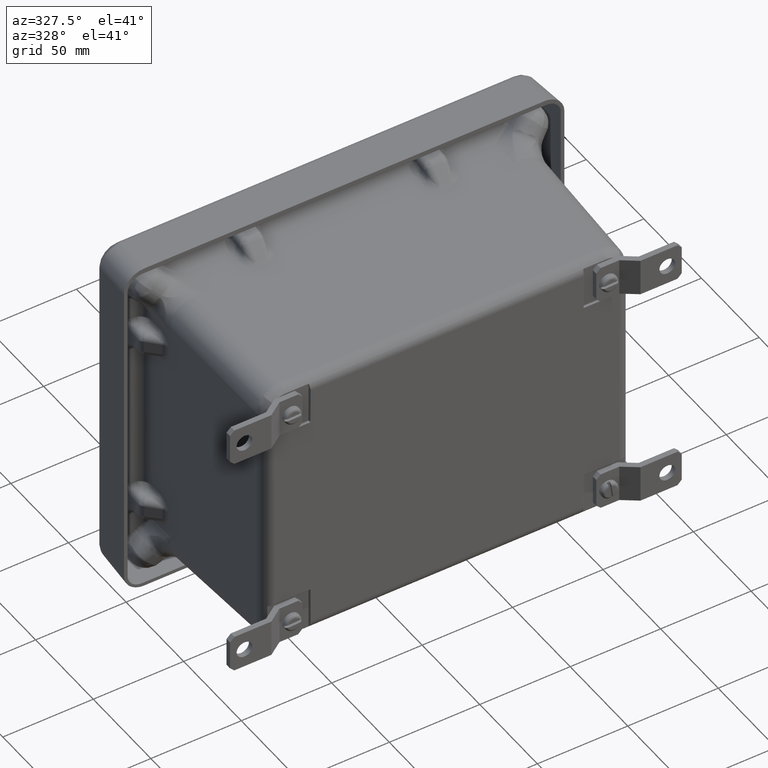
[diagram: clean part render]
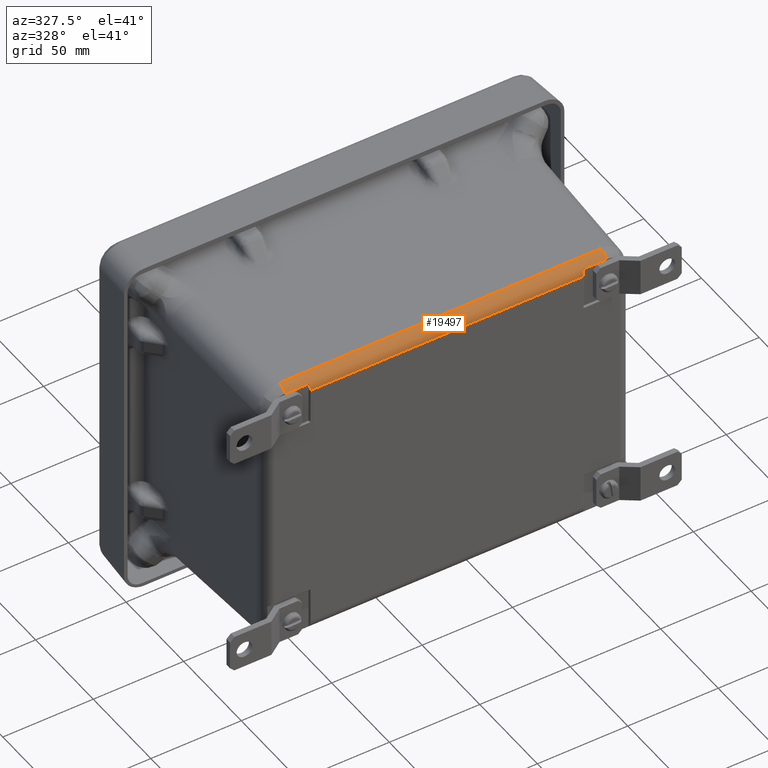
[diagram: same view with one face highlighted and labeled with its STEP entity id]
A machine part, auxiliary view. The second image highlights one B-rep face of the part: STEP entity #19497.
In plain terms, the highlighted cylindrical surface (edge-blend (fillet) strip) has radius 6.3589 mm, axis along (1, 0, 0).
Its self-contained STEP definition (entity closure, byte-faithful):
#55 = CARTESIAN_POINT ( 'NONE',  ( -0.04077956553384606100, -3.837576933481126500, -0.2370037834123364900 ) ) ;
#110 = B_SPLINE_CURVE_WITH_KNOTS ( 'NONE', 3,
 ( #860, #17782, #11177, #34636, #14554, #38021 ),
 .UNSPECIFIED., .F., .F.,
 ( 4, 2, 4 ),
 ( -1.595970091227201700E-005, 0.001080175662802211800, 0.002176311026516695700 ),
 .UNSPECIFIED. ) ;
#137 = CARTESIAN_POINT ( 'NONE',  ( -0.04077956553384606100, -3.837576933481126500, -0.2370037834123364900 ) ) ;
#235 = CARTESIAN_POINT ( 'NONE',  ( 7.102454849044406200, -3.863349773493431000, -0.2894882064771114300 ) ) ;
#494 = DIRECTION ( 'NONE',  ( -1.000000000000000000, 0.0000000000000000000, -4.373621081654475700E-015 ) ) ;
#860 = CARTESIAN_POINT ( 'NONE',  ( 7.086867515127703000, -3.877632933481125900, -0.3728402883143703800 ) ) ;
#1129 = VERTEX_POINT ( 'NONE', #36106 ) ;
#1674 = CARTESIAN_POINT ( 'NONE',  ( -0.04077956553384607500, -3.636020022480598500, -0.1226427947701392600 ) ) ;
#1695 = VERTEX_POINT ( 'NONE', #235 ) ;
#2007 = CARTESIAN_POINT ( 'NONE',  ( 7.102454849044406200, -3.863349773493431000, -0.2894882064771114300 ) ) ;
#2454 = CARTESIAN_POINT ( 'NONE',  ( 7.107789270866658300, -3.842213635250589100, -0.2444360573753257500 ) ) ;
#2574 = CARTESIAN_POINT ( 'NONE',  ( 0.6217345397383506900, -3.636020022480598100, -0.1226427947701392300 ) ) ;
#2903 = VERTEX_POINT ( 'NONE', #24163 ) ;
#3326 = CARTESIAN_POINT ( 'NONE',  ( 0.6217345397383508000, -3.837576933481126500, -0.2370037834123364900 ) ) ;
#3572 = EDGE_CURVE ( 'NONE', #26131, #6608, #10941, .T. ) ;
#3732 = EDGE_CURVE ( 'NONE', #27580, #1695, #110, .T. ) ;
#3965 = VERTEX_POINT ( 'NONE', #13054 ) ;
#3984 = B_SPLINE_CURVE_WITH_KNOTS ( 'NONE', 3,
 ( #43522, #26517, #26796, #6635, #30165, #10050 ),
 .UNSPECIFIED., .F., .F.,
 ( 4, 2, 4 ),
 ( 3.469446951953613800E-018, 0.001099208595283648500, 0.002198417190567293500 ),
 .UNSPECIFIED. ) ;
#4027 = AXIS2_PLACEMENT_3D ( 'NONE', #10173, #20162, #33484 ) ;
#4079 = CARTESIAN_POINT ( 'NONE',  ( 1.128831123126540200, -3.838506787475449000, -0.2384363131863163300 ) ) ;
#4420 = VECTOR ( 'NONE', #5043, 39.37007874015748100 ) ;
#5043 = DIRECTION ( 'NONE',  ( 1.000000000000000000, 0.0000000000000000000, -0.0000000000000000000 ) ) ;
#5812 = CARTESIAN_POINT ( 'NONE',  ( 7.113268404229185800, -3.838496993073793600, -0.2384208737063735200 ) ) ;
#5819 = VECTOR ( 'NONE', #13613, 39.37007874015748100 ) ;
#6608 = VERTEX_POINT ( 'NONE', #26082 ) ;
#6635 = CARTESIAN_POINT ( 'NONE',  ( 1.148207817856014000, -3.876468245888381700, -0.3448913871628474500 ) ) ;
#7190 = EDGE_CURVE ( 'NONE', #3965, #26649, #15464, .T. ) ;
#7301 = CARTESIAN_POINT ( 'NONE',  ( 1.138617603138208300, -3.851860093468821400, -0.2622047528302350900 ) ) ;
#7471 = CARTESIAN_POINT ( 'NONE',  ( 1.134296905230365100, -3.842222837789347700, -0.2444515329635382200 ) ) ;
#9228 = CARTESIAN_POINT ( 'NONE',  ( 7.119047399710798800, -3.837576933481126500, -0.2370037834123364900 ) ) ;
#9661 = ORIENTED_EDGE ( 'NONE', *, *, #17378, .F. ) ;
#9882 = CARTESIAN_POINT ( 'NONE',  ( 1.139335042097202800, -3.860060458294169500, -0.2801723234448173000 ) ) ;
#9947 = LINE ( 'NONE', #19377, #17833 ) ;
#10050 = CARTESIAN_POINT ( 'NONE',  ( 1.155210153804606200, -3.877632933481125900, -0.3728402883143703800 ) ) ;
#10173 = CARTESIAN_POINT ( 'NONE',  ( -0.04077956553384606100, -3.627282933481127200, -0.3728402883143698800 ) ) ;
#10894 = CARTESIAN_POINT ( 'NONE',  ( 1.138387242648754200, -3.849227061025873200, -0.2568600058137783200 ) ) ;
#10941 = LINE ( 'NONE', #137, #27730 ) ;
#11177 = CARTESIAN_POINT ( 'NONE',  ( 7.093869588130995200, -3.876468389788284300, -0.3448925283408433300 ) ) ;
#12609 = ORIENTED_EDGE ( 'NONE', *, *, #43500, .F. ) ;
#12652 = DIRECTION ( 'NONE',  ( -1.000000000000000000, -0.0000000000000000000, 0.0000000000000000000 ) ) ;
#13054 = CARTESIAN_POINT ( 'NONE',  ( 1.139622819887901700, -3.863349773493431000, -0.2894882064771111000 ) ) ;
#13613 = DIRECTION ( 'NONE',  ( -1.000000000000000000, -0.0000000000000000000, 0.0000000000000000000 ) ) ;
#14554 = CARTESIAN_POINT ( 'NONE',  ( 7.102032599808723900, -3.868176104342093700, -0.3031571712730032900 ) ) ;
#15464 =( BOUNDED_CURVE ( )  B_SPLINE_CURVE ( 3, ( #16623, #9882, #16757, #40244 ),
 .UNSPECIFIED., .F., .F. ) 
 B_SPLINE_CURVE_WITH_KNOTS ( ( 4, 4 ),
 ( 0.3394220890710965000, 0.4577417310200527800 ),
 .UNSPECIFIED. ) 
 CURVE ( )  GEOMETRIC_REPRESENTATION_ITEM ( )  RATIONAL_B_SPLINE_CURVE ( ( 1.000000000000000000, 0.9988337120763670600, 0.9988337120763670600, 1.000000000000000000 ) ) 
 REPRESENTATION_ITEM ( '' )  );
#15854 = LINE ( 'NONE', #55, #5819 ) ;
#16101 = B_SPLINE_CURVE_WITH_KNOTS ( 'NONE', 3,
 ( #39325, #42702, #22583, #2454, #25992, #5812, #29334, #9228 ),
 .UNSPECIFIED., .F., .F.,
 ( 4, 2, 2, 4 ),
 ( 8.673617379884034500E-019, 0.0004507702555979561800, 0.0006761553833969329100, 0.0009015405111959095400 ),
 .UNSPECIFIED. ) ;
#16623 = CARTESIAN_POINT ( 'NONE',  ( 1.139622819887901700, -3.863349773493431000, -0.2894882064771111000 ) ) ;
#16757 = CARTESIAN_POINT ( 'NONE',  ( 1.138999578600279800, -3.856226092978670900, -0.2710672197233449100 ) ) ;
#16796 = FACE_OUTER_BOUND ( 'NONE', #31969, .T. ) ;
#17378 = EDGE_CURVE ( 'NONE', #26131, #19147, #33714, .T. ) ;
#17491 = CARTESIAN_POINT ( 'NONE',  ( 1.123030269221503700, -3.837576933481126500, -0.2370037834123364900 ) ) ;
#17782 = CARTESIAN_POINT ( 'NONE',  ( 7.090356350835096000, -3.877632933481125500, -0.3588847904273496600 ) ) ;
#17833 = VECTOR ( 'NONE', #12652, 39.37007874015748100 ) ;
#18395 = CIRCLE ( 'NONE', #40780, 0.2503500000000000200 ) ;
#18627 = EDGE_CURVE ( 'NONE', #3965, #20644, #3984, .T. ) ;
#18783 = CARTESIAN_POINT ( 'NONE',  ( 7.103078090332027200, -3.856226092978671400, -0.2710672197233449700 ) ) ;
#19147 = VERTEX_POINT ( 'NONE', #2574 ) ;
#19377 = CARTESIAN_POINT ( 'NONE',  ( -0.005730565533849333600, -3.877632933481125900, -0.3728402883143703800 ) ) ;
#19497 = ADVANCED_FACE ( 'NONE', ( #16796 ), #33588, .T. ) ;
#19736 = DIRECTION ( 'NONE',  ( -1.000000000000000000, 0.0000000000000000000, 0.0000000000000000000 ) ) ;
#20162 = DIRECTION ( 'NONE',  ( 1.000000000000000000, 0.0000000000000000000, -0.0000000000000000000 ) ) ;
#20644 = VERTEX_POINT ( 'NONE', #35621 ) ;
#20650 = CARTESIAN_POINT ( 'NONE',  ( 7.620343129193956100, -3.627282933481127200, -0.3728402883143699400 ) ) ;
#20668 = CARTESIAN_POINT ( 'NONE',  ( 7.103460065794100100, -3.851860093468821400, -0.2622047528302353700 ) ) ;
#21034 = ORIENTED_EDGE ( 'NONE', *, *, #39707, .F. ) ;
#22140 = CARTESIAN_POINT ( 'NONE',  ( 7.102742626835103900, -3.860060458294170400, -0.2801723234448174600 ) ) ;
#22295 = ORIENTED_EDGE ( 'NONE', *, *, #7190, .F. ) ;
#22583 = CARTESIAN_POINT ( 'NONE',  ( 7.104521576872668800, -3.846411767845553600, -0.2516437586828562100 ) ) ;
#23640 = DIRECTION ( 'NONE',  ( 1.000000000000000000, 0.0000000000000000000, -0.0000000000000000000 ) ) ;
#24004 = DIRECTION ( 'NONE',  ( -4.364846005455183600E-015, 0.0000000000000000000, 1.000000000000000000 ) ) ;
#24163 = CARTESIAN_POINT ( 'NONE',  ( 7.620343129193956100, -3.636020022480597200, -0.1226427947701392200 ) ) ;
#25992 = CARTESIAN_POINT ( 'NONE',  ( 7.109220893799230700, -3.840825596416959500, -0.2421517689278372100 ) ) ;
#26082 = CARTESIAN_POINT ( 'NONE',  ( 1.123030269221503700, -3.837576933481126500, -0.2370037834123364900 ) ) ;
#26131 = VERTEX_POINT ( 'NONE', #3326 ) ;
#26517 = CARTESIAN_POINT ( 'NONE',  ( 1.140045060466355500, -3.868176005389508500, -0.3031568910229674500 ) ) ;
#26649 = VERTEX_POINT ( 'NONE', #7301 ) ;
#26796 = CARTESIAN_POINT ( 'NONE',  ( 1.142422887179138000, -3.871745785582077800, -0.3170516251492765900 ) ) ;
#26956 = ORIENTED_EDGE ( 'NONE', *, *, #37896, .T. ) ;
#27043 = ORIENTED_EDGE ( 'NONE', *, *, #31842, .T. ) ;
#27580 = VERTEX_POINT ( 'NONE', #34257 ) ;
#27620 = CARTESIAN_POINT ( 'NONE',  ( 1.132863104341034900, -3.840832038356513800, -0.2421623451358899700 ) ) ;
#27730 = VECTOR ( 'NONE', #23640, 39.37007874015748100 ) ;
#28856 = VERTEX_POINT ( 'NONE', #30045 ) ;
#29334 = CARTESIAN_POINT ( 'NONE',  ( 7.116019418430836300, -3.837576933481127400, -0.2370037834123374100 ) ) ;
#30045 = CARTESIAN_POINT ( 'NONE',  ( 7.119047399710798800, -3.837576933481126500, -0.2370037834123364900 ) ) ;
#30146 = EDGE_CURVE ( 'NONE', #1129, #28856, #15854, .T. ) ;
#30165 = CARTESIAN_POINT ( 'NONE',  ( 1.151711536458558400, -3.877632933481125900, -0.3588456634380312000 ) ) ;
#30473 = ORIENTED_EDGE ( 'NONE', *, *, #3732, .T. ) ;
#30986 = CARTESIAN_POINT ( 'NONE',  ( 1.137556393659012100, -3.846415623003378600, -0.2516510283075782400 ) ) ;
#31842 = EDGE_CURVE ( 'NONE', #1129, #2903, #18395, .T. ) ;
#31969 = EDGE_LOOP ( 'NONE', ( #22295, #36742, #21034, #30473, #33867, #26956, #42766, #27043, #12609, #9661, #42473, #33338 ) ) ;
#32118 = CARTESIAN_POINT ( 'NONE',  ( 7.103460065794100100, -3.851860093468821400, -0.2622047528302353700 ) ) ;
#33338 = ORIENTED_EDGE ( 'NONE', *, *, #39085, .T. ) ;
#33484 = DIRECTION ( 'NONE',  ( 0.0000000000000000000, 0.0000000000000000000, -1.000000000000000000 ) ) ;
#33588 = CYLINDRICAL_SURFACE ( 'NONE', #4027, 0.2503500000000000200 ) ;
#33714 = CIRCLE ( 'NONE', #43344, 0.2503500000000000200 ) ;
#33867 = ORIENTED_EDGE ( 'NONE', *, *, #39238, .F. ) ;
#34205 = CARTESIAN_POINT ( 'NONE',  ( 1.126062376264881800, -3.837576933481125200, -0.2370037834123365200 ) ) ;
#34257 = CARTESIAN_POINT ( 'NONE',  ( 7.086867515127703000, -3.877632933481125900, -0.3728402883143703800 ) ) ;
#34357 = CARTESIAN_POINT ( 'NONE',  ( 1.138617603138208300, -3.851860093468821400, -0.2622047528302350900 ) ) ;
#34636 = CARTESIAN_POINT ( 'NONE',  ( 7.099654688870320900, -3.871745932153960900, -0.3170521963732652000 ) ) ;
#35621 = CARTESIAN_POINT ( 'NONE',  ( 1.155210153804606200, -3.877632933481125900, -0.3728402883143703800 ) ) ;
#36106 = CARTESIAN_POINT ( 'NONE',  ( 7.620343129193956100, -3.837576933481126500, -0.2370037834123364100 ) ) ;
#36124 = VERTEX_POINT ( 'NONE', #20668 ) ;
#36742 = ORIENTED_EDGE ( 'NONE', *, *, #18627, .T. ) ;
#37086 =( BOUNDED_CURVE ( )  B_SPLINE_CURVE ( 3, ( #32118, #18783, #22140, #2007 ),
 .UNSPECIFIED., .F., .F. ) 
 B_SPLINE_CURVE_WITH_KNOTS ( ( 4, 4 ),
 ( 2.683850922569742000, 2.802170564518698700 ),
 .UNSPECIFIED. ) 
 CURVE ( )  GEOMETRIC_REPRESENTATION_ITEM ( )  RATIONAL_B_SPLINE_CURVE ( ( 1.000000000000000000, 0.9988337120763670600, 0.9988337120763670600, 1.000000000000000000 ) ) 
 REPRESENTATION_ITEM ( '' )  );
#37896 = EDGE_CURVE ( 'NONE', #36124, #28856, #16101, .T. ) ;
#38021 = CARTESIAN_POINT ( 'NONE',  ( 7.102454849044406200, -3.863349773493431000, -0.2894882064771114300 ) ) ;
#39085 = EDGE_CURVE ( 'NONE', #6608, #26649, #40306, .T. ) ;
#39238 = EDGE_CURVE ( 'NONE', #36124, #1695, #37086, .T. ) ;
#39325 = CARTESIAN_POINT ( 'NONE',  ( 7.103460065794100100, -3.851860093468821400, -0.2622047528302353700 ) ) ;
#39707 = EDGE_CURVE ( 'NONE', #27580, #20644, #9947, .T. ) ;
#39834 = CARTESIAN_POINT ( 'NONE',  ( 0.6217345397383503600, -3.627282933481126300, -0.3728402883143698800 ) ) ;
#40177 = LINE ( 'NONE', #1674, #4420 ) ;
#40244 = CARTESIAN_POINT ( 'NONE',  ( 1.138617603138208300, -3.851860093468821400, -0.2622047528302350900 ) ) ;
#40306 = B_SPLINE_CURVE_WITH_KNOTS ( 'NONE', 3,
 ( #17491, #34205, #4079, #27620, #7471, #30986, #10894, #34357 ),
 .UNSPECIFIED., .F., .F.,
 ( 4, 2, 2, 4 ),
 ( 6.992893892674702500E-018, 0.0002275328712400635600, 0.0004550657424801201300, 0.0009101314849602526200 ),
 .UNSPECIFIED. ) ;
#40780 = AXIS2_PLACEMENT_3D ( 'NONE', #20650, #494, #24004 ) ;
#42473 = ORIENTED_EDGE ( 'NONE', *, *, #3572, .T. ) ;
#42702 = CARTESIAN_POINT ( 'NONE',  ( 7.103690510062970800, -3.849226103422754600, -0.2568580619917711900 ) ) ;
#42766 = ORIENTED_EDGE ( 'NONE', *, *, #30146, .F. ) ;
#43217 = DIRECTION ( 'NONE',  ( 0.0000000000000000000, 0.0000000000000000000, 1.000000000000000000 ) ) ;
#43344 = AXIS2_PLACEMENT_3D ( 'NONE', #39834, #19736, #43217 ) ;
#43500 = EDGE_CURVE ( 'NONE', #19147, #2903, #40177, .T. ) ;
#43522 = CARTESIAN_POINT ( 'NONE',  ( 1.139622819887901700, -3.863349773493431000, -0.2894882064771111000 ) ) ;